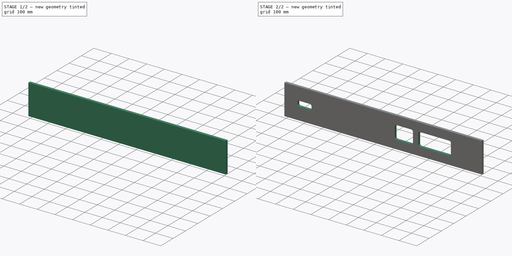
[diagram: build sequence overview — one tinted view per stage of 2, left to right]
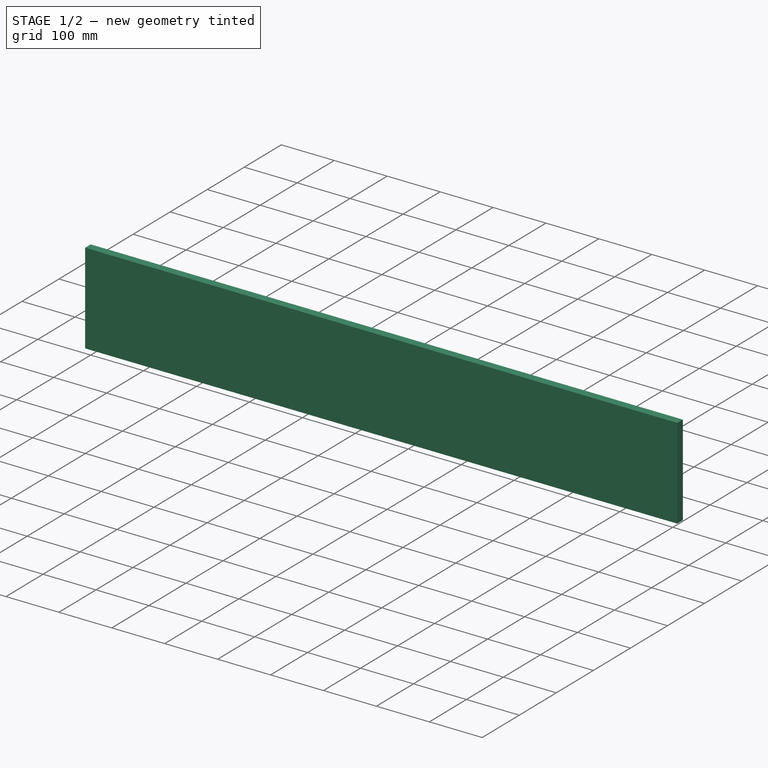
[diagram: stage 1 of 2 — iso view after this stage's code; geometry added in this stage tinted green]
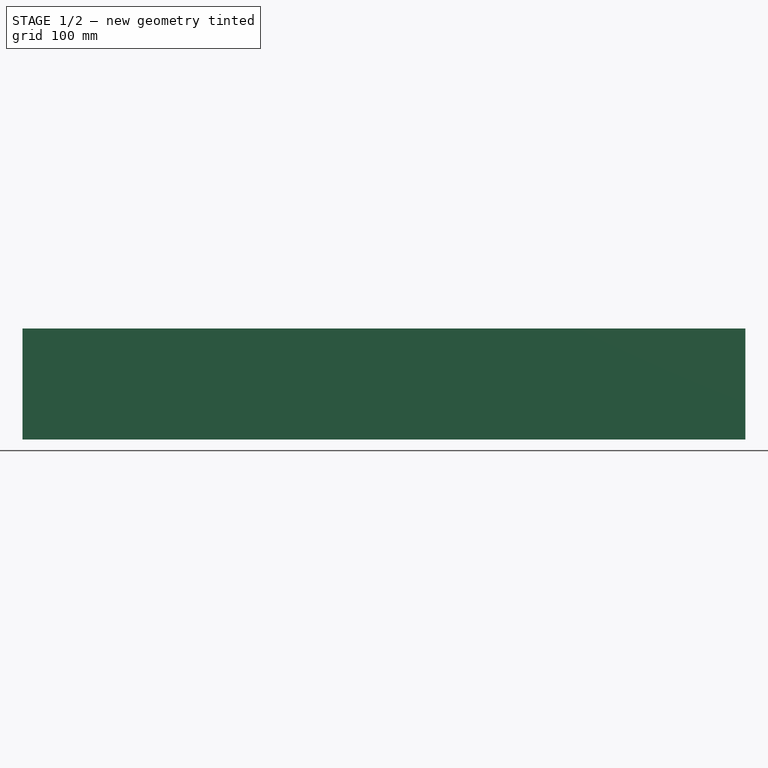
[diagram: stage 1 of 2 — front view after this stage's code; geometry added in this stage tinted green]
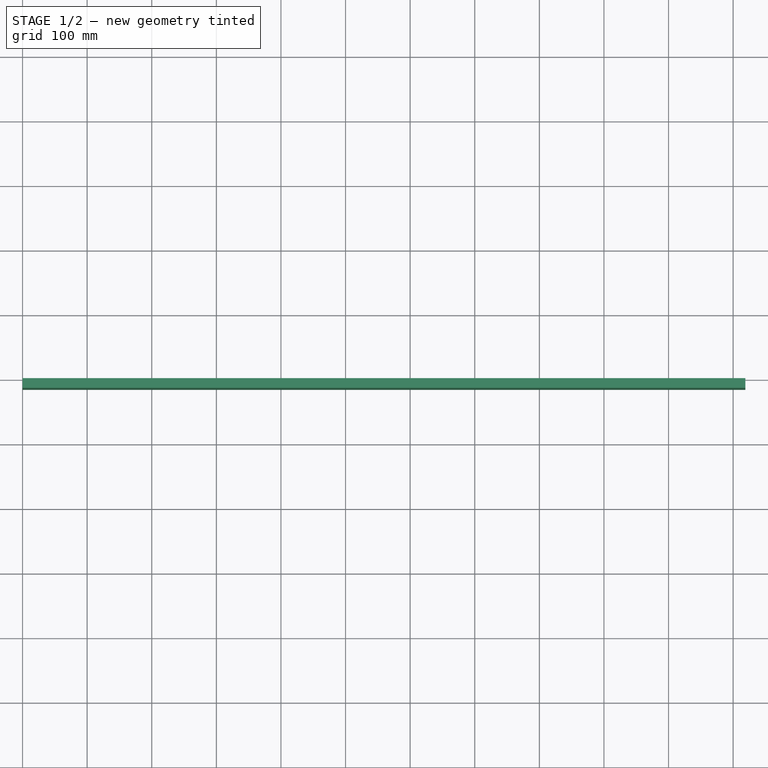
[diagram: stage 1 of 2 — top view after this stage's code; geometry added in this stage tinted green]
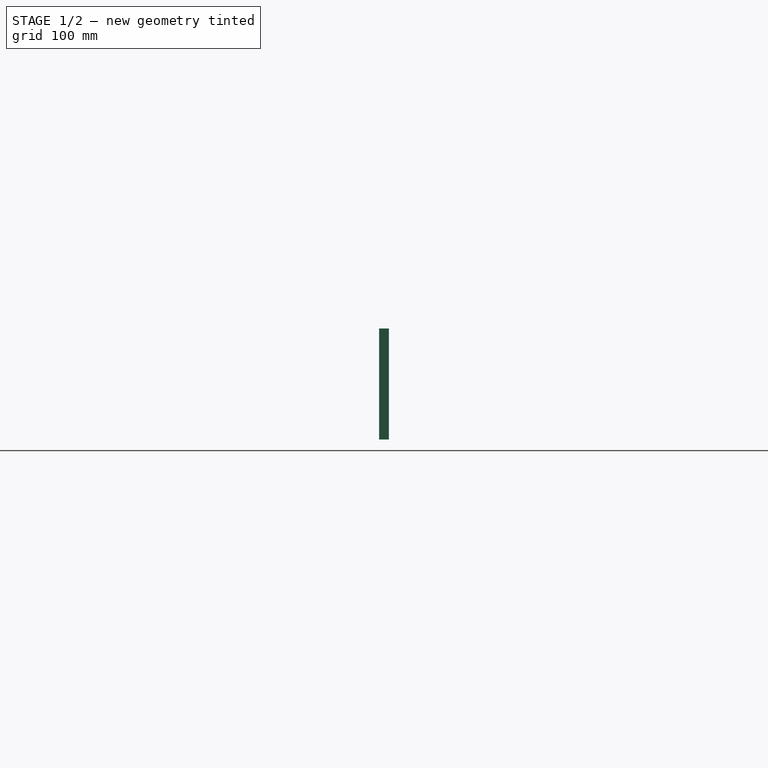
[diagram: stage 1 of 2 — right view after this stage's code; geometry added in this stage tinted green]
FCSTD DOCUMENT  (FreeCAD 0.21R33694 (Git))
Label: PanneauArriereConsole
License: Creative Commons Attribution 3.0
LicenseURL: http://en.wikipedia.org/wiki/Public_domain
objects: Sketcher::SketchObject×2, PartDesign::Pad×1, PartDesign::Pocket×1, PartDesign::Body×1
note: 7 computed .brp shape members not serialized (recipe doc carries the construction recipe); baked Part::Feature solids carry a one-line shape summary decoded from their .brp

FEATURE [Sketcher::SketchObject] Sketch
  FullyConstrained = true
  MapMode = 5
  Placement = pos=(0,0,0) rot=(1,0,0;1.5708rad)
  Support = -> [XZ_Plane]
  sketch-geometry (4):
    g0: LineSegment StartX=0 StartY=0 StartZ=0 EndX=1119 EndY=0 EndZ=0
    g1: LineSegment StartX=1119 StartY=0 StartZ=0 EndX=1119 EndY=172 EndZ=0
    g2: LineSegment StartX=1119 StartY=172 StartZ=0 EndX=0 EndY=172 EndZ=0
    g3: LineSegment StartX=0 StartY=172 StartZ=0 EndX=0 EndY=0 EndZ=0
  constraints (11):
    c: Coincident(g0,g1)
    c: Coincident(g1,g2)
    c: Coincident(g2,g3)
    c: Coincident(g3,g0)
    c: Horizontal(g0)
    c: Horizontal(g2)
    c: Vertical(g1)
    c: Vertical(g3)
    c: Coincident(g0,g-1)
    c: DistanceX(g2,g2) = 1119
    c: DistanceY(g3,g3) = 172
FEATURE [PartDesign::Pad] Pad
  Direction = (0,-1,-2e-16)
  Length = 15
  Length2 = 10
  Placement = pos=(0,0,0) rot=(1,0,0;1.5708rad)
  Profile = -> Sketch
  ReferenceAxis = -> Sketch [N_Axis]
  Type = 0
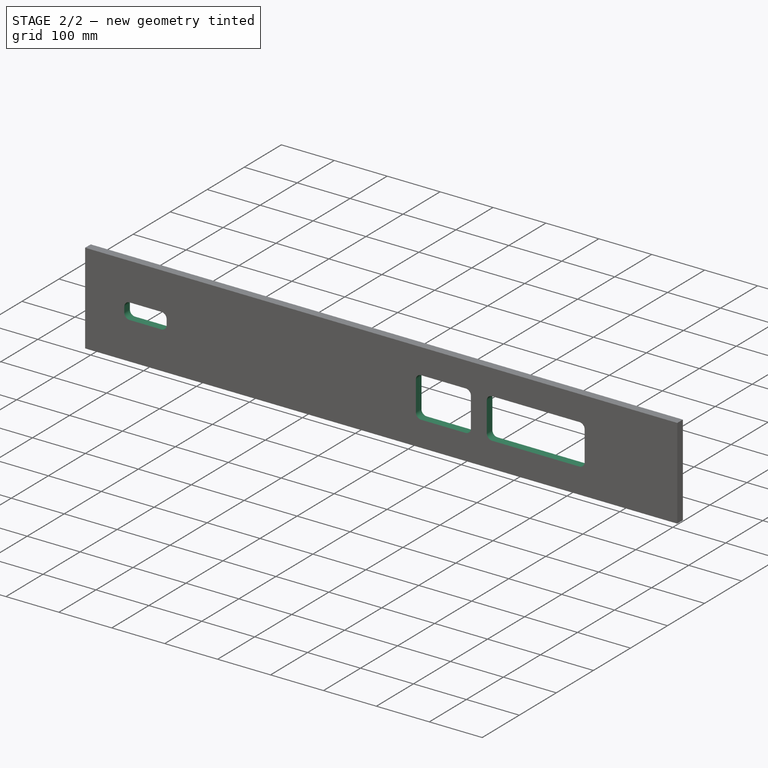
[diagram: stage 2 of 2 — iso view after this stage's code; geometry added in this stage tinted green]
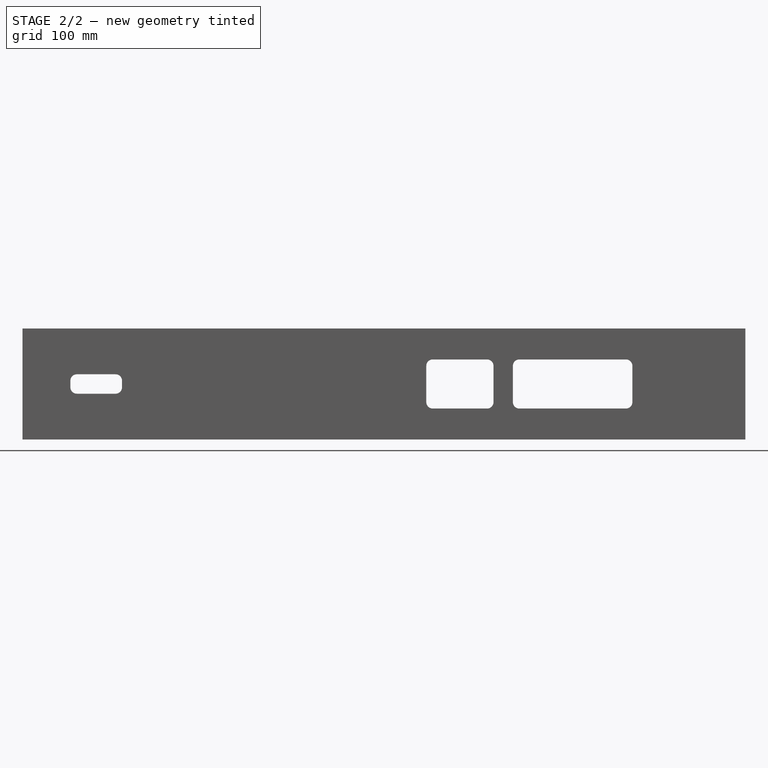
[diagram: stage 2 of 2 — front view after this stage's code; geometry added in this stage tinted green]
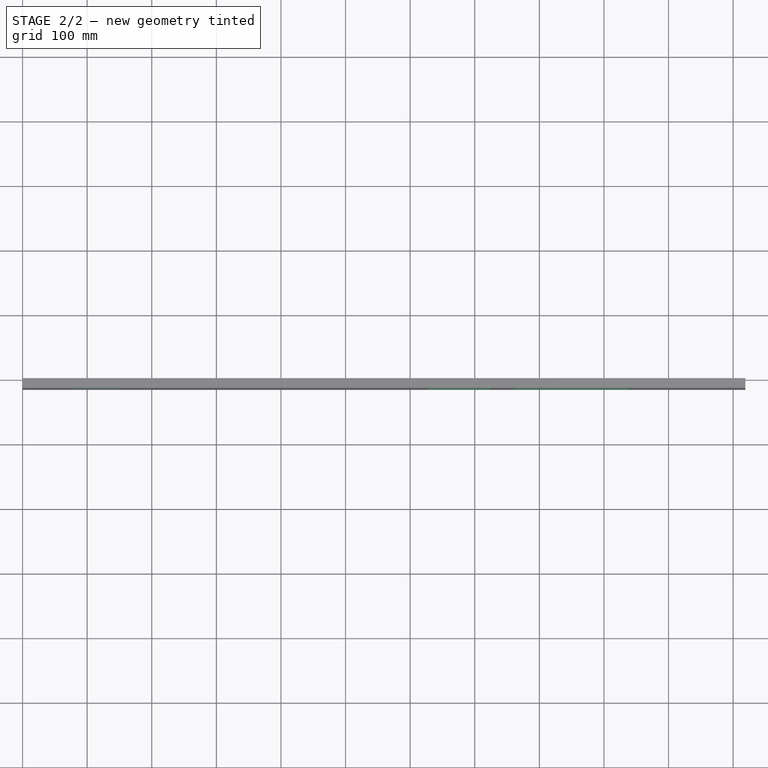
[diagram: stage 2 of 2 — top view after this stage's code; geometry added in this stage tinted green]
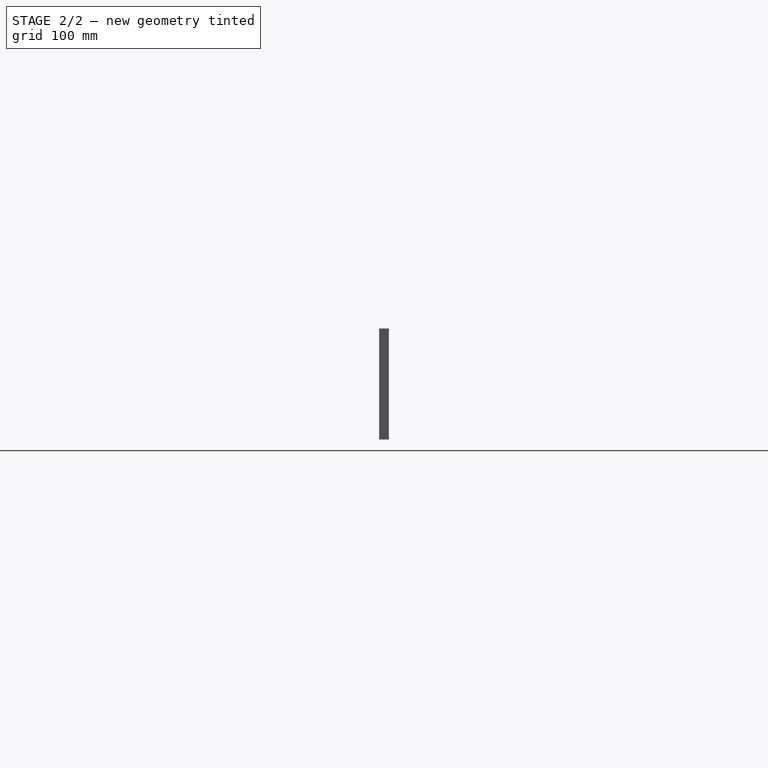
[diagram: stage 2 of 2 — right view after this stage's code; geometry added in this stage tinted green]
FEATURE [Sketcher::SketchObject] Sketch001
  ExternalGeometry = -> [Pad]
  FullyConstrained = true
  MapMode = 5
  Placement = pos=(0,-15,-3.3e-15) rot=(1,0,0;1.5708rad)
  Support = -> [Pad]
  sketch-geometry (34):
    g0: LineSegment StartX=0 StartY=172 StartZ=0 EndX=1119 EndY=0 EndZ=0
    g1: LineSegment StartX=0 StartY=0 StartZ=0 EndX=1119 EndY=172 EndZ=0
    g2: GeomPoint X=559.5 Y=86 Z=0
    g3: LineSegment StartX=0 StartY=86 StartZ=0 EndX=1119 EndY=86 EndZ=0
    g4: ArcOfCircle CenterX=635 CenterY=114 CenterZ=0 NormalX=0 NormalY=0 NormalZ=1 AngleXU=0 Radius=10 StartAngle=1.5708 EndAngle=3.14159
    g5: LineSegment StartX=635 StartY=124 StartZ=0 EndX=719 EndY=124 EndZ=0
    g6: ArcOfCircle CenterX=719 CenterY=114 CenterZ=0 NormalX=0 NormalY=0 NormalZ=1 AngleXU=0 Radius=10 StartAngle=0 EndAngle=1.5708
    g7: LineSegment StartX=729 StartY=114 StartZ=0 EndX=729 EndY=58 EndZ=0
    g8: ArcOfCircle CenterX=719 CenterY=58 CenterZ=0 NormalX=0 NormalY=0 NormalZ=1 AngleXU=0 Radius=10 StartAngle=4.71239 EndAngle=6.28319
    g9: LineSegment StartX=719 StartY=48 StartZ=0 EndX=635 EndY=48 EndZ=0
    g10: ArcOfCircle CenterX=635 CenterY=58 CenterZ=0 NormalX=0 NormalY=0 NormalZ=1 AngleXU=0 Radius=10 StartAngle=3.14159 EndAngle=4.71239
    g11: LineSegment StartX=625 StartY=58 StartZ=0 EndX=625 EndY=114 EndZ=0
    g12: GeomPoint X=625 Y=124 Z=0
    g13: GeomPoint X=729 Y=48 Z=0
    g14: ArcOfCircle CenterX=769 CenterY=114 CenterZ=0 NormalX=0 NormalY=0 NormalZ=1 AngleXU=0 Radius=10 StartAngle=1.5708 EndAngle=3.14159
    g15: LineSegment StartX=769 StartY=124 StartZ=0 EndX=934 EndY=124 EndZ=0
    g16: ArcOfCircle CenterX=934 CenterY=114 CenterZ=0 NormalX=0 NormalY=0 NormalZ=1 AngleXU=0 Radius=10 StartAngle=1e-16 EndAngle=1.5708
    g17: LineSegment StartX=944 StartY=114 StartZ=0 EndX=944 EndY=58 EndZ=0
    g18: ArcOfCircle CenterX=934 CenterY=58 CenterZ=0 NormalX=0 NormalY=0 NormalZ=1 AngleXU=0 Radius=10 StartAngle=4.71239 EndAngle=6.28319
    g19: LineSegment StartX=934 StartY=48 StartZ=0 EndX=769 EndY=48 EndZ=0
    g20: ArcOfCircle CenterX=769 CenterY=58 CenterZ=0 NormalX=0 NormalY=0 NormalZ=1 AngleXU=0 Radius=10 StartAngle=3.14159 EndAngle=4.71239
    g21: LineSegment StartX=759 StartY=58 StartZ=0 EndX=759 EndY=114 EndZ=0
    g22: GeomPoint X=759 Y=124 Z=0
    g23: GeomPoint X=944 Y=48 Z=0
    g24: ArcOfCircle CenterX=84 CenterY=91 CenterZ=0 NormalX=0 NormalY=0 NormalZ=1 AngleXU=0 Radius=10 StartAngle=1.5708 EndAngle=3.14159
    g25: LineSegment StartX=84 StartY=101 StartZ=0 EndX=144 EndY=101 EndZ=0
    g26: ArcOfCircle CenterX=144 CenterY=91 CenterZ=0 NormalX=0 NormalY=0 NormalZ=1 AngleXU=0 Radius=10 StartAngle=2e-16 EndAngle=1.5708
    g27: LineSegment StartX=154 StartY=91 StartZ=0 EndX=154 EndY=81 EndZ=0
    g28: ArcOfCircle CenterX=144 CenterY=81 CenterZ=0 NormalX=0 NormalY=0 NormalZ=1 AngleXU=0 Radius=10 StartAngle=4.71239 EndAngle=6.28319
    g29: LineSegment StartX=144 StartY=71 StartZ=0 EndX=84 EndY=71 EndZ=0
    g30: ArcOfCircle CenterX=84 CenterY=81 CenterZ=0 NormalX=0 NormalY=0 NormalZ=1 AngleXU=0 Radius=10 StartAngle=3.14159 EndAngle=4.71239
    g31: LineSegment StartX=74 StartY=81 StartZ=0 EndX=74 EndY=91 EndZ=0
    g32: GeomPoint X=74 Y=101 Z=0
    g33: GeomPoint X=154 Y=71 Z=0
  constraints (80):
    c: Coincident(g0,g-3)
    c: Coincident(g0,g-4)
    c: Coincident(g1,g-4)
    c: Coincident(g1,g-3)
    c: PointOnObject(g2,g1)
    c: PointOnObject(g3,g-2)
    c: Horizontal(g3)
    c: PointOnObject(g2,g3)
    c: Tangent(g4,g5) = 1.5708
    c: Tangent(g5,g6) = 1.5708
    c: Tangent(g6,g7) = 1.5708
    c: Tangent(g7,g8) = 1.5708
    c: Tangent(g8,g9) = 1.5708
    c: Tangent(g9,g10) = 1.5708
    c: Tangent(g10,g11) = 1.5708
    c: Tangent(g11,g4) = 1.5708
    c: Horizontal(g5)
    c: Horizontal(g9)
    c: Vertical(g7)
    c: Vertical(g11)
    c: Equal(g4,g6)
    c: Equal(g8,g10)
    c: PointOnObject(g12,g5)
    c: PointOnObject(g12,g11)
    c: PointOnObject(g13,g7)
    c: PointOnObject(g13,g9)
    c: DistanceX(g10,g7) = 104
    c: DistanceY(g9,g4) = 76
    c: Radius(g4) = 10
    c: Symmetric(g6,g8,g3)
    c: PointOnObject(g2,g0)
    c: DistanceX(g6,g1) = 390
    c: Vertical(g3,g1)
    c: Tangent(g14,g15) = 1.5708
    c: Tangent(g15,g16) = 1.5708
    c: Tangent(g16,g17) = 1.5708
    c: Tangent(g17,g18) = 1.5708
    c: Tangent(g18,g19) = 1.5708
    c: Tangent(g19,g20) = 1.5708
    c: Tangent(g20,g21) = 1.5708
    c: Tangent(g21,g14) = 1.5708
    c: Horizontal(g15)
    c: Horizontal(g19)
    c: Vertical(g17)
    c: Vertical(g21)
    c: Equal(g14,g16)
    c: Equal(g16,g18)
    c: Equal(g18,g20)
    c: PointOnObject(g22,g15)
    c: PointOnObject(g22,g21)
    c: PointOnObject(g23,g17)
    c: PointOnObject(g23,g19)
    c: DistanceX(g14,g16) = 185
    c: Horizontal(g14,g5)
    c: Horizontal(g19,g8)
    c: Equal(g14,g4)
    c: DistanceX(g6,g14) = 30
    c: Tangent(g24,g25) = 1.5708
    c: Tangent(g25,g26) = 1.5708
    c: Tangent(g26,g27) = 1.5708
    c: Tangent(g27,g28) = 1.5708
    c: Tangent(g28,g29) = 1.5708
    c: Tangent(g29,g30) = 1.5708
    c: Tangent(g30,g31) = 1.5708
    c: Tangent(g31,g24) = 1.5708
    c: Horizontal(g25)
    c: Horizontal(g29)
    c: Vertical(g27)
    c: Vertical(g31)
    c: Equal(g24,g26)
    c: Equal(g28,g30)
    c: PointOnObject(g32,g25)
    c: PointOnObject(g32,g31)
    c: PointOnObject(g33,g27)
    c: PointOnObject(g33,g29)
    c: DistanceX(g24,g26) = 80
    c: DistanceY(g28,g25) = 30
    c: Equal(g24,g4)
    c: Symmetric(g25,g28,g3)
    c: DistanceX(g3,g24) = 74
FEATURE [PartDesign::Pocket] Pocket
  BaseFeature = -> Pad
  Direction = (0,1,2e-16)
  Length = 5
  Length2 = 5
  Placement = pos=(0,0,0) rot=(1,0,0;1.5708rad)
  Profile = -> Sketch001
  ReferenceAxis = -> Sketch001 [N_Axis]
  Type = 1
FEATURE [PartDesign::Body] Body
  Group = -> [Sketch,Pad,Sketch001,Pocket]
  Origin = -> Origin
  Tip = -> Pocket
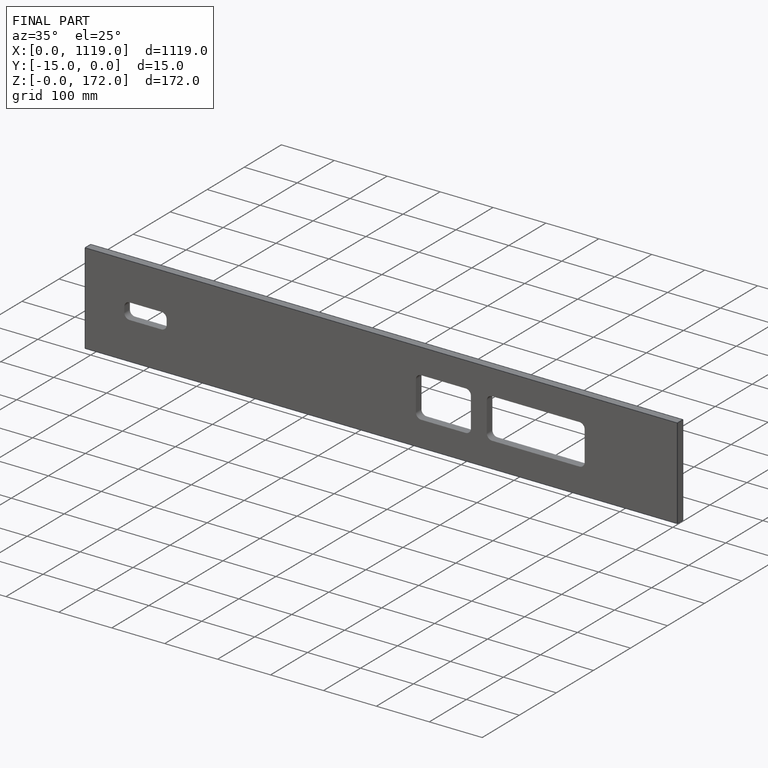
[diagram: finished part — iso view with bounding-box wireframe]
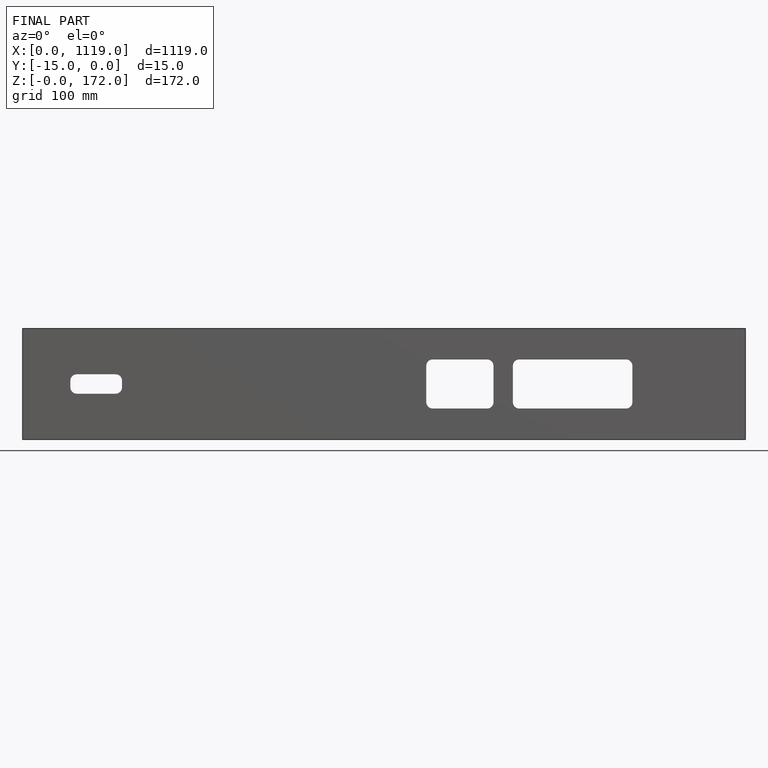
[diagram: finished part — front view with bounding-box wireframe]
